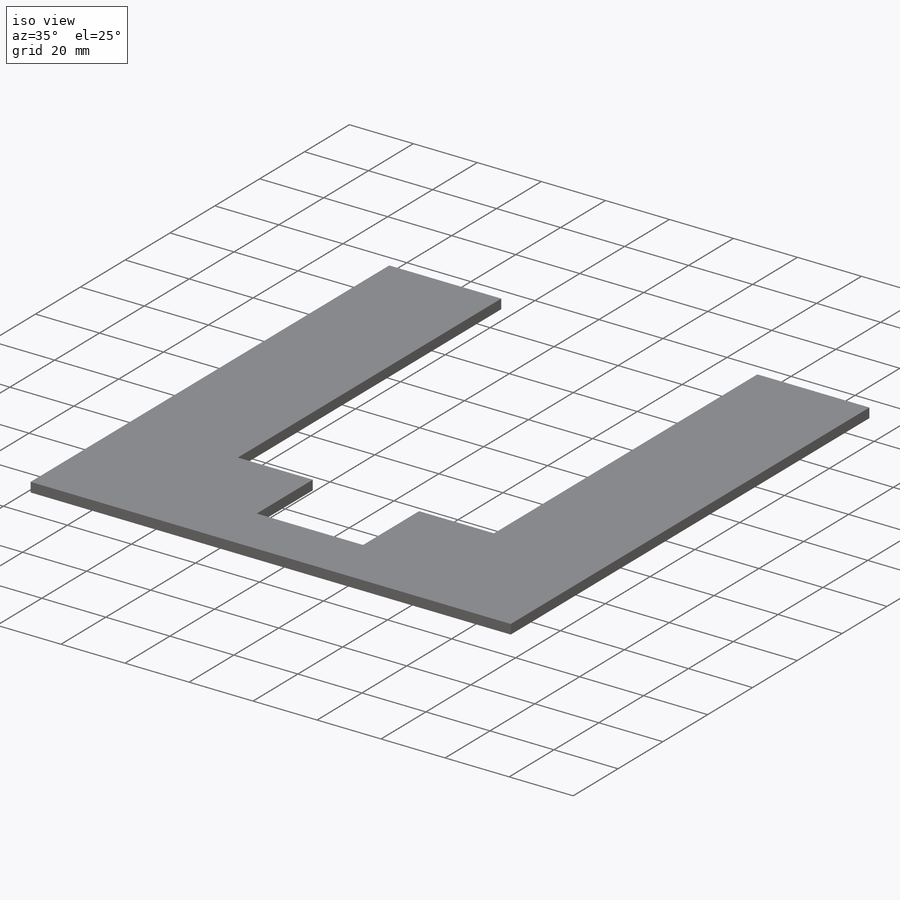
[diagram: iso view]
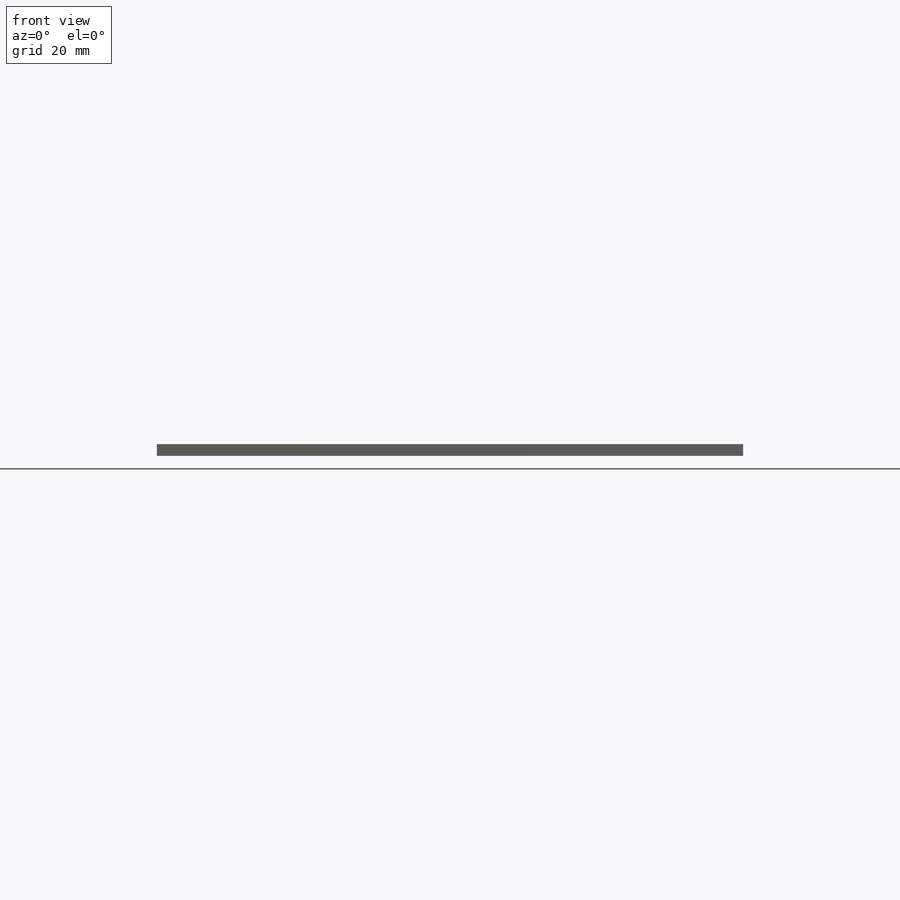
[diagram: front view]
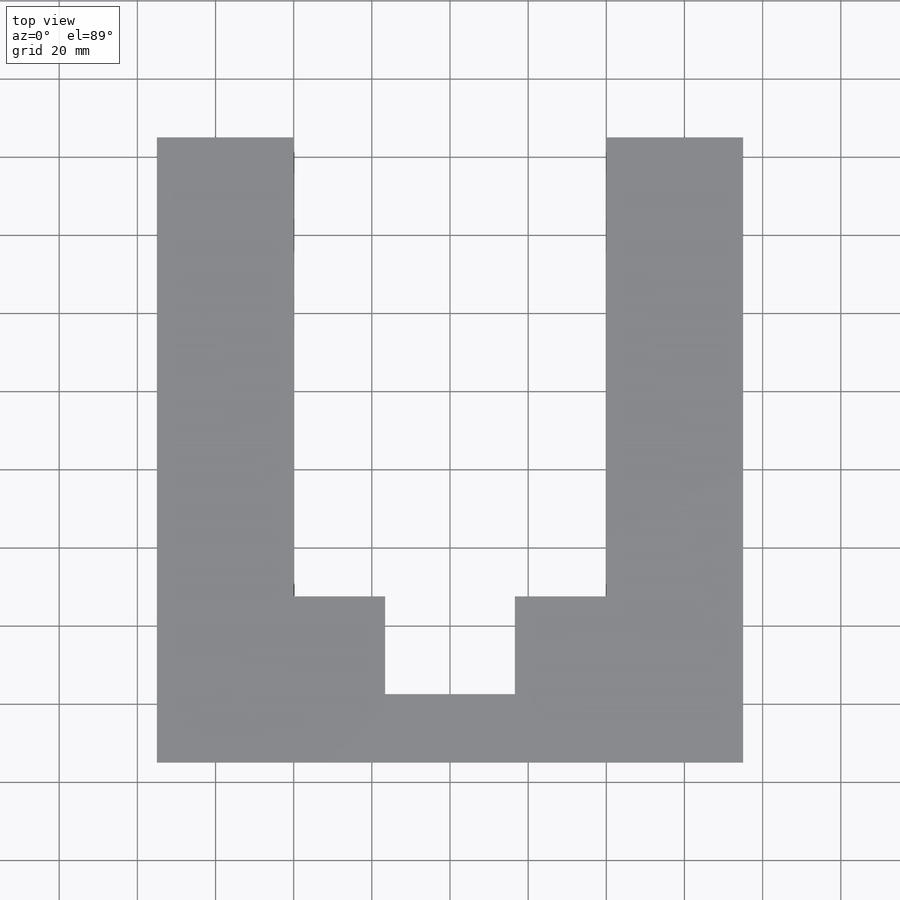
[diagram: top view]
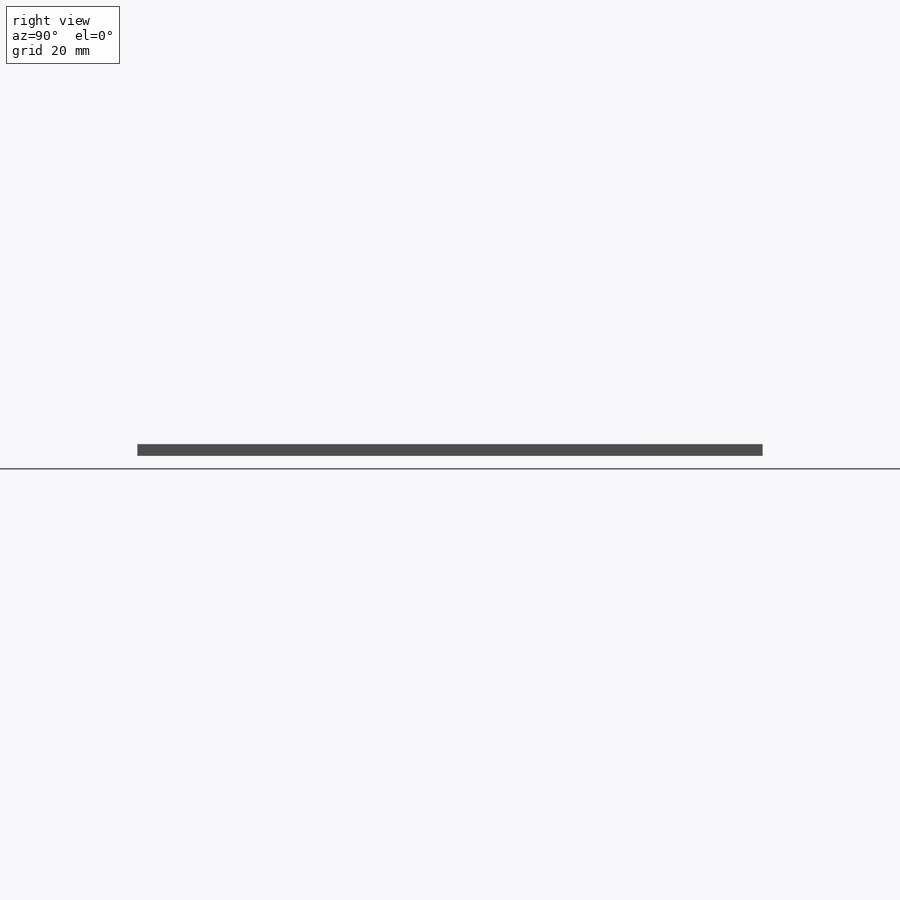
[diagram: right view]
SOLIDWORKS PART (.sldprt)
format: sldprt  version: not decoded by parser v0  size: 172,544 bytes
history: native  units: mm
features: sketch x5, cut_extrude x3, extrude x2, material x1 (+13 scaffold rows collapsed)
feature tree (24):
  scaffold x13  (default folders/planes/origin — collapsed)
  material  "Material <not specified>"
  sketch  "Sketch3"  dims[c1.D1=~64.914076mm c1.D2=~121.108351mm c2.D1=150.0mm c2.D2=150.0mm]
  extrude  "Boss-Extrude1"  Depth=3mm
  sketch  "Sketch4"  dims[c1.D1=80.0mm c1.D2=80.0mm c2.D1=35.0mm c2.D2=80.0mm c2.D3=80.0mm]
  cut_extrude  "Cut-Extrude1"  Depth=3mm
  sketch  "Sketch5"  dims[c1.D1=3.0mm c1.D2=35.0mm c2.D1=3.0mm c2.D2=35.0mm]
  extrude  "Boss-Extrude2"  Depth=10mm
  sketch  "Sketch7"  dims[D1=3.0mm D2=80.0mm]
  cut_extrude  "Cut-Extrude2"  Depth=27.5mm
  sketch  "Sketch8"  dims[c1.D1=25.0mm c1.D2=33.2mm c2.D1=25.0mm c2.D2=33.2mm c2.D3=23.4mm]
  cut_extrude  "Cut-Extrude3"  Depth=3mm
decode coverage: 10 of 10 modeling features carry decoded parameters
note: ~ marks probable driven/reference dimensions
note: suppression state not decoded; provenance and decode notes live in map.json
